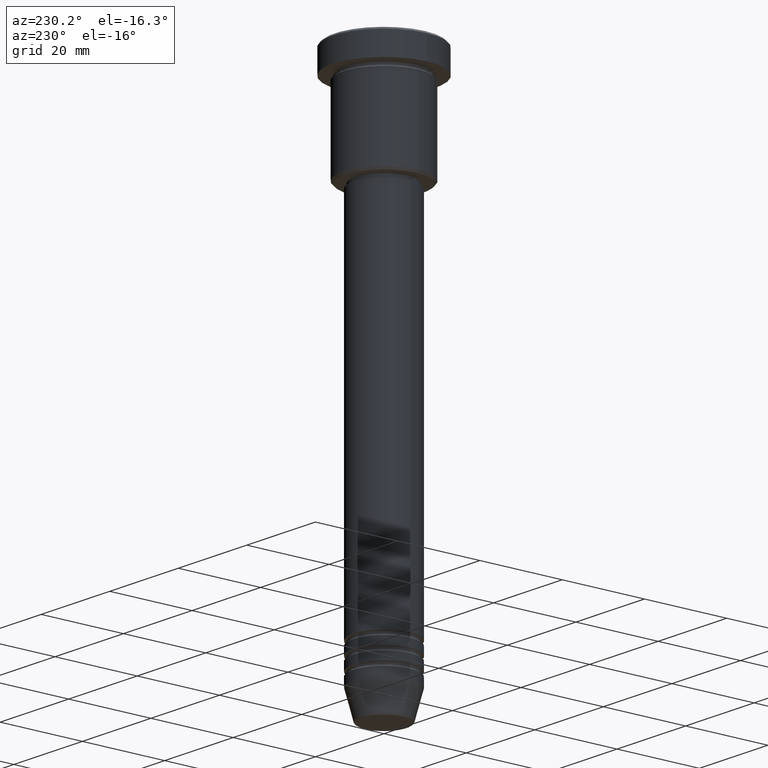
[diagram: clean part render]
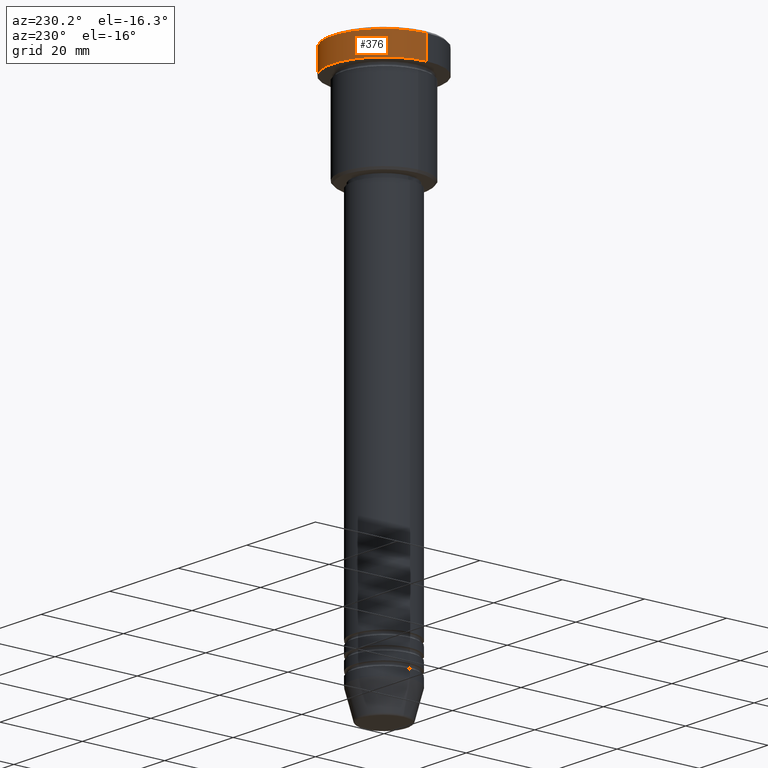
[diagram: same view with one face highlighted and labeled with its STEP entity id]
A machine part, auxiliary view. The second image highlights one B-rep face of the part: STEP entity #376.
In plain terms, the highlighted cylindrical surface (partial cylindrical patch) has radius 12.5 mm, axis along (-0, -0, 1).
Its self-contained STEP definition (entity closure, byte-faithful):
#3 = AXIS2_PLACEMENT_3D ( 'NONE', #947, #580, #748 ) ;
#19 = LINE ( 'NONE', #850, #840 ) ;
#69 = VERTEX_POINT ( 'NONE', #534 ) ;
#75 = CARTESIAN_POINT ( 'NONE',  ( -12.50000000000000000, 1.530808498934191521E-15, -5.999999999999996447 ) ) ;
#90 = CARTESIAN_POINT ( 'NONE',  ( 12.50000000000000000, 0.000000000000000000, -0.4999999999999640288 ) ) ;
#97 = DIRECTION ( 'NONE',  ( 1.000000000000000000, 0.000000000000000000, 0.000000000000000000 ) ) ;
#106 = VERTEX_POINT ( 'NONE', #356 ) ;
#174 = CARTESIAN_POINT ( 'NONE',  ( 0.000000000000000000, 0.000000000000000000, -5.999999999999996447 ) ) ;
#276 = EDGE_CURVE ( 'NONE', #106, #1179, #19, .T. ) ;
#277 = AXIS2_PLACEMENT_3D ( 'NONE', #174, #998, #902 ) ;
#304 = FACE_OUTER_BOUND ( 'NONE', #606, .T. ) ;
#341 = CARTESIAN_POINT ( 'NONE',  ( -12.50000000000000000, 1.530808498934191521E-15, 0.000000000000000000 ) ) ;
#356 = CARTESIAN_POINT ( 'NONE',  ( 12.50000000000000000, 0.000000000000000000, -5.999999999999996447 ) ) ;
#376 = ADVANCED_FACE ( 'NONE', ( #304 ), #471, .T. ) ;
#430 = DIRECTION ( 'NONE',  ( -0.000000000000000000, -0.000000000000000000, 1.000000000000000000 ) ) ;
#471 = CYLINDRICAL_SURFACE ( 'NONE', #3, 12.50000000000000000 ) ;
#534 = CARTESIAN_POINT ( 'NONE',  ( -12.50000000000000000, 1.530808498934191521E-15, -0.4999999999999640288 ) ) ;
#536 = CIRCLE ( 'NONE', #277, 12.50000000000000000 ) ;
#541 = CARTESIAN_POINT ( 'NONE',  ( 0.000000000000000000, 0.000000000000000000, -0.4999999999999640288 ) ) ;
#580 = DIRECTION ( 'NONE',  ( -0.000000000000000000, -0.000000000000000000, 1.000000000000000000 ) ) ;
#587 = EDGE_CURVE ( 'NONE', #69, #1179, #611, .T. ) ;
#601 = ORIENTED_EDGE ( 'NONE', *, *, #276, .F. ) ;
#606 = EDGE_LOOP ( 'NONE', ( #852, #1106, #693, #601 ) ) ;
#611 = CIRCLE ( 'NONE', #1149, 12.50000000000000000 ) ;
#618 = LINE ( 'NONE', #341, #978 ) ;
#621 = VERTEX_POINT ( 'NONE', #75 ) ;
#673 = DIRECTION ( 'NONE',  ( -0.000000000000000000, -0.000000000000000000, 1.000000000000000000 ) ) ;
#693 = ORIENTED_EDGE ( 'NONE', *, *, #587, .T. ) ;
#748 = DIRECTION ( 'NONE',  ( 1.000000000000000000, 0.000000000000000000, 0.000000000000000000 ) ) ;
#840 = VECTOR ( 'NONE', #673, 1000.000000000000000 ) ;
#850 = CARTESIAN_POINT ( 'NONE',  ( 12.50000000000000000, 0.000000000000000000, 0.000000000000000000 ) ) ;
#852 = ORIENTED_EDGE ( 'NONE', *, *, #1163, .T. ) ;
#902 = DIRECTION ( 'NONE',  ( 1.000000000000000000, 0.000000000000000000, 0.000000000000000000 ) ) ;
#947 = CARTESIAN_POINT ( 'NONE',  ( 0.000000000000000000, 0.000000000000000000, 0.000000000000000000 ) ) ;
#978 = VECTOR ( 'NONE', #430, 1000.000000000000000 ) ;
#998 = DIRECTION ( 'NONE',  ( -0.000000000000000000, -0.000000000000000000, 1.000000000000000000 ) ) ;
#1106 = ORIENTED_EDGE ( 'NONE', *, *, #1125, .T. ) ;
#1125 = EDGE_CURVE ( 'NONE', #621, #69, #618, .T. ) ;
#1149 = AXIS2_PLACEMENT_3D ( 'NONE', #541, #1173, #97 ) ;
#1163 = EDGE_CURVE ( 'NONE', #106, #621, #536, .T. ) ;
#1173 = DIRECTION ( 'NONE',  ( 0.000000000000000000, 0.000000000000000000, -1.000000000000000000 ) ) ;
#1179 = VERTEX_POINT ( 'NONE', #90 ) ;